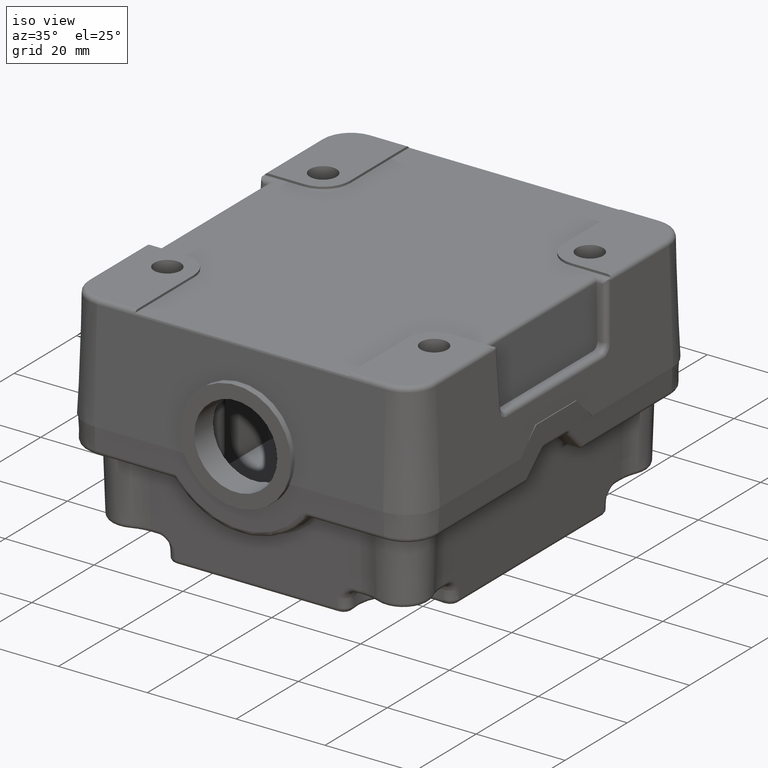
[diagram: clean part render]
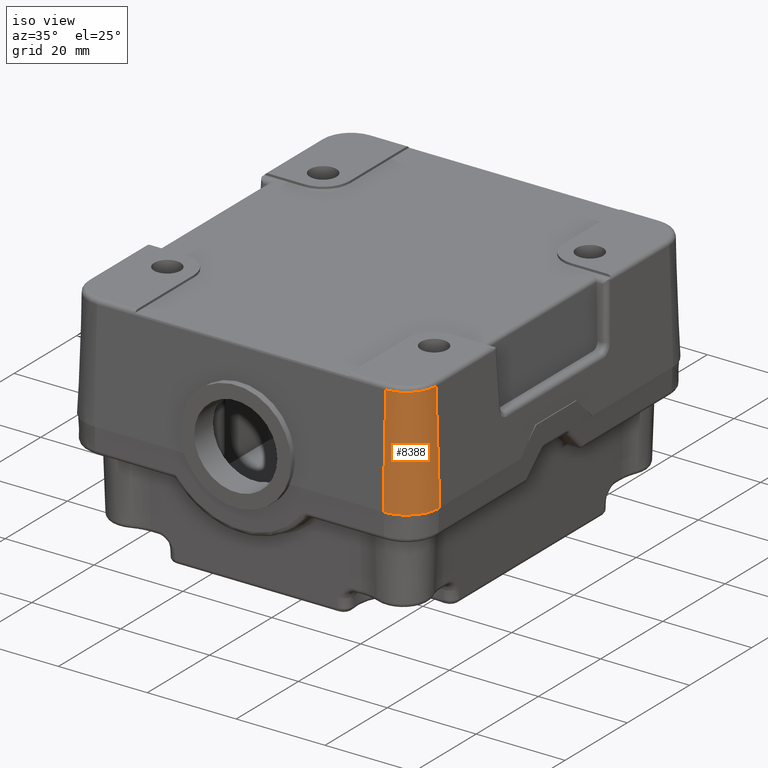
[diagram: same view with one face highlighted and labeled with its STEP entity id]
A machine part, iso view. The second image highlights one B-rep face of the part: STEP entity #8388.
In plain terms, the highlighted conical surface has half-angle 2 deg.
Its self-contained STEP definition (entity closure, byte-faithful):
#5389=CARTESIAN_POINT('',(72.986153024442203,-73.108067806393322,0.0));
#5390=VERTEX_POINT('',#5389);
#5397=CARTESIAN_POINT('',(65.486153024442217,-80.608067806393322,0.0));
#5398=VERTEX_POINT('',#5397);
#5399=CARTESIAN_POINT('',(65.486153024442203,-73.108067806393322,0.0));
#5400=DIRECTION('',(0.0,0.0,1.0));
#5401=DIRECTION('',(0.0,-1.0,0.0));
#5402=AXIS2_PLACEMENT_3D('',#5399,#5400,#5401);
#5403=CIRCLE('',#5402,7.500000000000000);
#5404=EDGE_CURVE('',#5398,#5390,#5403,.T.);
#7451=CARTESIAN_POINT('',(65.486153024442217,-79.751290236565779,24.534899496702497));
#7452=VERTEX_POINT('',#7451);
#7453=CARTESIAN_POINT('',(65.486153024442217,-80.608067806393322,0.0));
#7454=DIRECTION('',(0.0,0.034899496702501,0.999390827019096));
#7455=VECTOR('',#7454,24.549854604812879);
#7456=LINE('',#7453,#7455);
#7457=EDGE_CURVE('',#5398,#7452,#7456,.T.);
#7955=CARTESIAN_POINT('',(72.129375454614660,-73.108067806393322,24.534899496702497));
#7956=VERTEX_POINT('',#7955);
#7963=CARTESIAN_POINT('',(72.986153024442203,-73.108067806393322,0.0));
#7964=DIRECTION('',(-0.034899496702501,0.0,0.999390827019096));
#7965=VECTOR('',#7964,24.549854604812879);
#7966=LINE('',#7963,#7965);
#7967=EDGE_CURVE('',#5390,#7956,#7966,.T.);
#8292=CARTESIAN_POINT('',(65.486153024442203,-73.108067806393322,24.534899496702497));
#8293=DIRECTION('',(0.0,0.0,1.000000000000000));
#8294=DIRECTION('',(0.871907824675734,-0.489670037136467,0.0));
#8295=AXIS2_PLACEMENT_3D('',#8292,#8293,#8294);
#8296=CIRCLE('',#8295,6.643222430172453);
#8297=EDGE_CURVE('',#7452,#7956,#8296,.T.);
#8377=CARTESIAN_POINT('',(65.486153024442203,-73.108067806393322,0.0));
#8378=DIRECTION('',(0.0,0.0,-1.0));
#8379=DIRECTION('',(0.0,-1.0,0.0));
#8380=AXIS2_PLACEMENT_3D('',#8377,#8378,#8379);
#8381=CONICAL_SURFACE('',#8380,7.500000000000000,2.0);
#8382=ORIENTED_EDGE('',*,*,#8297,.F.);
#8383=ORIENTED_EDGE('',*,*,#7457,.F.);
#8384=ORIENTED_EDGE('',*,*,#5404,.T.);
#8385=ORIENTED_EDGE('',*,*,#7967,.T.);
#8386=EDGE_LOOP('',(#8382,#8383,#8384,#8385));
#8387=FACE_OUTER_BOUND('',#8386,.T.);
#8388=ADVANCED_FACE('',(#8387),#8381,.T.);